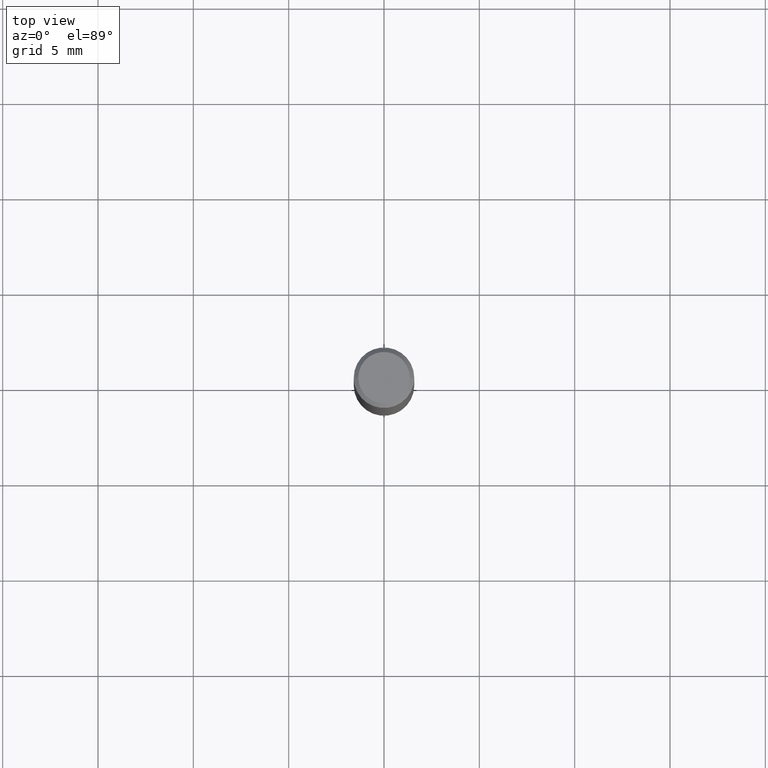
[diagram: clean part render]
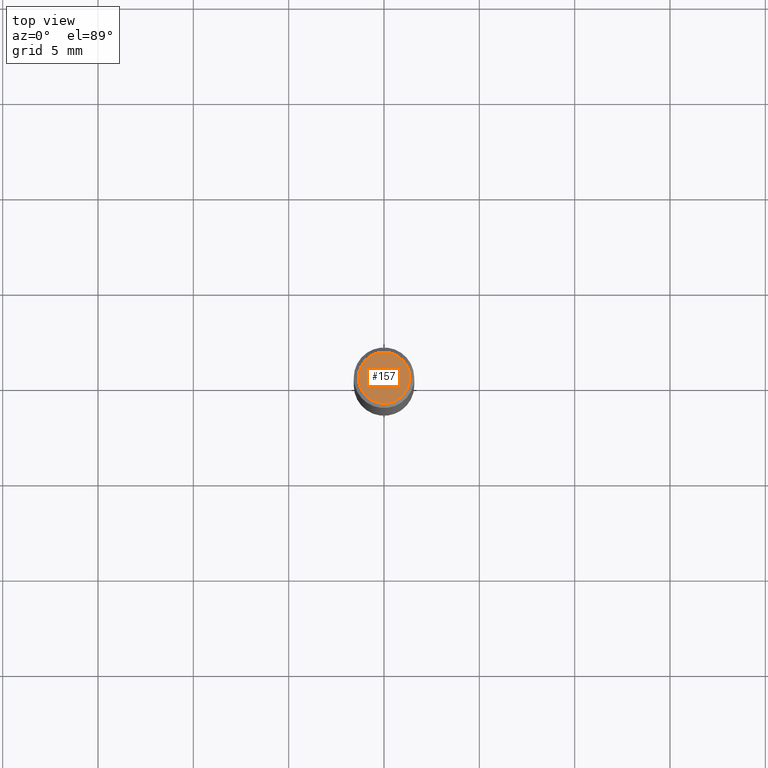
[diagram: same view with one face highlighted and labeled with its STEP entity id]
A machine part, top view. The second image highlights one B-rep face of the part: STEP entity #157.
In plain terms, the highlighted planar face has unit normal (0, -0, -1).
Its self-contained STEP definition (entity closure, byte-faithful):
#8 = EDGE_CURVE ( 'NONE', #30, #259, #227, .T. ) ;
#21 = DIRECTION ( 'NONE',  ( -2.445468806185136597E-29, 3.491481338843145583E-15, 1.000000000000000000 ) ) ;
#30 = VERTEX_POINT ( 'NONE', #35 ) ;
#35 = CARTESIAN_POINT ( 'NONE',  ( -0.05312499999999999861, 3.873362110279099094E-16, -5.787680772773044021E-18 ) ) ;
#93 = AXIS2_PLACEMENT_3D ( 'NONE', #142, #150, #335 ) ;
#97 = ORIENTED_EDGE ( 'NONE', *, *, #8, .T. ) ;
#100 = EDGE_CURVE ( 'NONE', #259, #30, #443, .T. ) ;
#138 = DIRECTION ( 'NONE',  ( -1.000000000000000000, 6.982962677686265922E-15, -4.876176775795935793E-29 ) ) ;
#142 = CARTESIAN_POINT ( 'NONE',  ( 1.415359278996747967E-46, -2.020757941330909984E-32, -5.787680772770392401E-18 ) ) ;
#150 = DIRECTION ( 'NONE',  ( -2.445468806185136597E-29, 3.491481338843145583E-15, 1.000000000000000000 ) ) ;
#157 = ADVANCED_FACE ( 'NONE', ( #498 ), #550, .F. ) ;
#217 = CARTESIAN_POINT ( 'NONE',  ( 0.05312499999999999861, -4.129888592719939842E-16, -5.787680772767651417E-18 ) ) ;
#227 = CIRCLE ( 'NONE', #398, 0.05312499999999999861 ) ;
#259 = VERTEX_POINT ( 'NONE', #217 ) ;
#276 = DIRECTION ( 'NONE',  ( 1.000000000000000000, -6.982962677686266711E-15, 4.875930095424100059E-29 ) ) ;
#283 = EDGE_LOOP ( 'NONE', ( #97, #536 ) ) ;
#335 = DIRECTION ( 'NONE',  ( 1.000000000000000000, -6.982962677686266711E-15, 4.875930095424100059E-29 ) ) ;
#349 = CARTESIAN_POINT ( 'NONE',  ( 1.415359278996747967E-46, -2.020757941330909984E-32, -5.787680772770392401E-18 ) ) ;
#398 = AXIS2_PLACEMENT_3D ( 'NONE', #349, #21, #276 ) ;
#410 = AXIS2_PLACEMENT_3D ( 'NONE', #502, #559, #138 ) ;
#443 = CIRCLE ( 'NONE', #93, 0.05312499999999999861 ) ;
#498 = FACE_OUTER_BOUND ( 'NONE', #283, .T. ) ;
#502 = CARTESIAN_POINT ( 'NONE',  ( 7.076796394983739835E-47, -1.010378970665454992E-32, -2.893840386385196200E-18 ) ) ;
#536 = ORIENTED_EDGE ( 'NONE', *, *, #100, .T. ) ;
#550 = PLANE ( 'NONE',  #410 ) ;
#559 = DIRECTION ( 'NONE',  ( 2.438088387897960049E-29, -3.491481338843145188E-15, -1.000000000000000000 ) ) ;